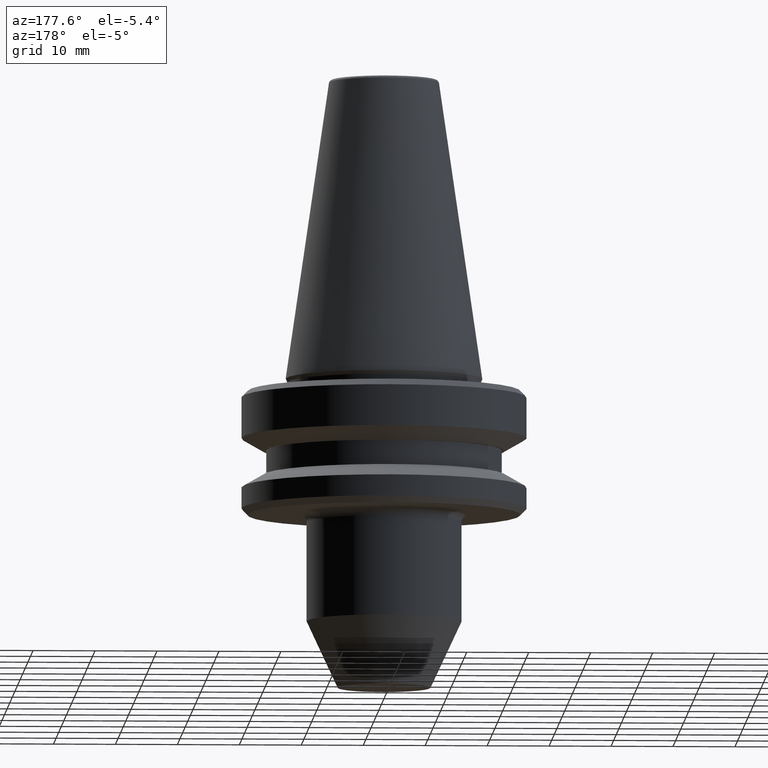
[diagram: clean part render]
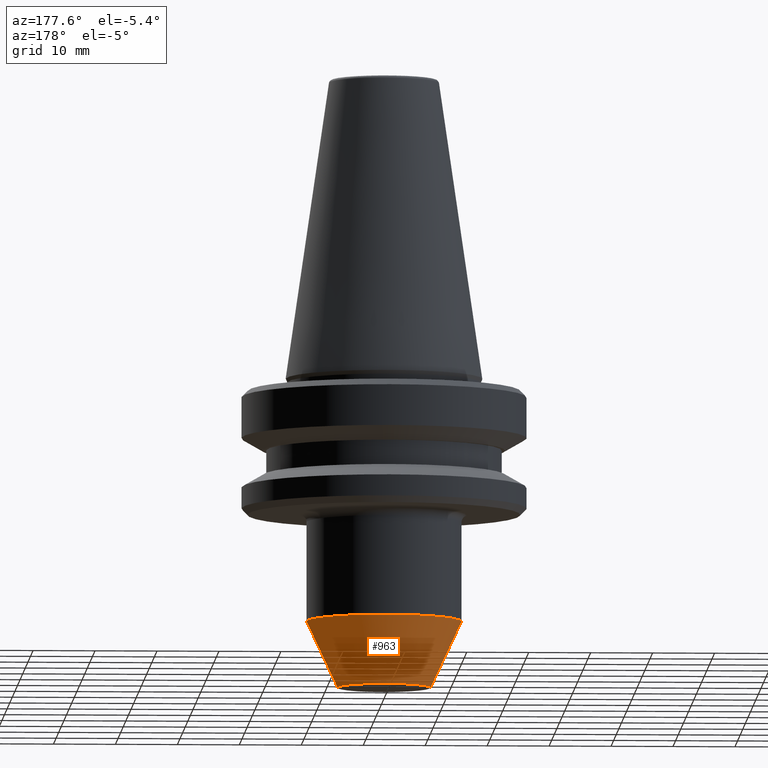
[diagram: same view with one face highlighted and labeled with its STEP entity id]
A machine part, auxiliary view. The second image highlights one B-rep face of the part: STEP entity #963.
In plain terms, the highlighted conical surface has half-angle 25 deg.
Its self-contained STEP definition (entity closure, byte-faithful):
#9 = ORIENTED_EDGE ( 'NONE', *, *, #988, .T. ) ;
#21 = DIRECTION ( 'NONE',  ( -0.0000000000000000000, -0.0000000000000000000, 1.000000000000000000 ) ) ;
#29 = DIRECTION ( 'NONE',  ( 1.000000000000000000, 0.0000000000000000000, 0.0000000000000000000 ) ) ;
#57 = EDGE_CURVE ( 'NONE', #809, #441, #373, .T. ) ;
#82 = AXIS2_PLACEMENT_3D ( 'NONE', #911, #673, #994 ) ;
#108 = CARTESIAN_POINT ( 'NONE',  ( -12.50000000000000000, 1.530808498934191500E-015, -39.27746539745214000 ) ) ;
#115 = VECTOR ( 'NONE', #183, 1000.000000000000000 ) ;
#126 = ORIENTED_EDGE ( 'NONE', *, *, #613, .T. ) ;
#132 = DIRECTION ( 'NONE',  ( 0.4226182617406973900, 0.0000000000000000000, 0.9063077870366509400 ) ) ;
#183 = DIRECTION ( 'NONE',  ( -0.4226182617406973900, 5.175581015019633500E-017, 0.9063077870366509400 ) ) ;
#196 = CARTESIAN_POINT ( 'NONE',  ( 12.50000000000000000, 0.0000000000000000000, -39.27746539745214000 ) ) ;
#213 = CONICAL_SURFACE ( 'NONE', #415, 12.50000000000000000, 0.4363323129985801100 ) ;
#252 = CARTESIAN_POINT ( 'NONE',  ( -12.50000000000000000, 1.530808498934191500E-015, -39.27746539745214000 ) ) ;
#271 = ORIENTED_EDGE ( 'NONE', *, *, #57, .F. ) ;
#310 = CARTESIAN_POINT ( 'NONE',  ( 0.0000000000000000000, 0.0000000000000000000, -39.27746539745214000 ) ) ;
#331 = LINE ( 'NONE', #108, #115 ) ;
#338 = VERTEX_POINT ( 'NONE', #992 ) ;
#373 = LINE ( 'NONE', #196, #578 ) ;
#415 = AXIS2_PLACEMENT_3D ( 'NONE', #310, #21, #624 ) ;
#441 = VERTEX_POINT ( 'NONE', #598 ) ;
#467 = CIRCLE ( 'NONE', #82, 12.50000000000000000 ) ;
#476 = DIRECTION ( 'NONE',  ( -0.0000000000000000000, -0.0000000000000000000, 1.000000000000000000 ) ) ;
#479 = FACE_OUTER_BOUND ( 'NONE', #750, .T. ) ;
#518 = ORIENTED_EDGE ( 'NONE', *, *, #669, .F. ) ;
#569 = AXIS2_PLACEMENT_3D ( 'NONE', #948, #476, #29 ) ;
#578 = VECTOR ( 'NONE', #132, 1000.000000000000000 ) ;
#585 = CIRCLE ( 'NONE', #569, 7.499999999999996400 ) ;
#598 = CARTESIAN_POINT ( 'NONE',  ( 12.50000000000000000, 0.0000000000000000000, -39.27746539745214000 ) ) ;
#613 = EDGE_CURVE ( 'NONE', #338, #654, #331, .T. ) ;
#624 = DIRECTION ( 'NONE',  ( 1.000000000000000000, 0.0000000000000000000, 0.0000000000000000000 ) ) ;
#654 = VERTEX_POINT ( 'NONE', #252 ) ;
#661 = CARTESIAN_POINT ( 'NONE',  ( 7.499999999999996400, 0.0000000000000000000, -50.00000000000000000 ) ) ;
#669 = EDGE_CURVE ( 'NONE', #441, #654, #467, .T. ) ;
#673 = DIRECTION ( 'NONE',  ( -0.0000000000000000000, -0.0000000000000000000, 1.000000000000000000 ) ) ;
#750 = EDGE_LOOP ( 'NONE', ( #9, #126, #518, #271 ) ) ;
#809 = VERTEX_POINT ( 'NONE', #661 ) ;
#911 = CARTESIAN_POINT ( 'NONE',  ( 0.0000000000000000000, 0.0000000000000000000, -39.27746539745214000 ) ) ;
#948 = CARTESIAN_POINT ( 'NONE',  ( 0.0000000000000000000, 0.0000000000000000000, -50.00000000000000000 ) ) ;
#963 = ADVANCED_FACE ( 'NONE', ( #479 ), #213, .T. ) ;
#988 = EDGE_CURVE ( 'NONE', #809, #338, #585, .T. ) ;
#992 = CARTESIAN_POINT ( 'NONE',  ( -7.499999999999996400, 1.224646799147353300E-015, -50.00000000000000000 ) ) ;
#994 = DIRECTION ( 'NONE',  ( 1.000000000000000000, 0.0000000000000000000, 0.0000000000000000000 ) ) ;